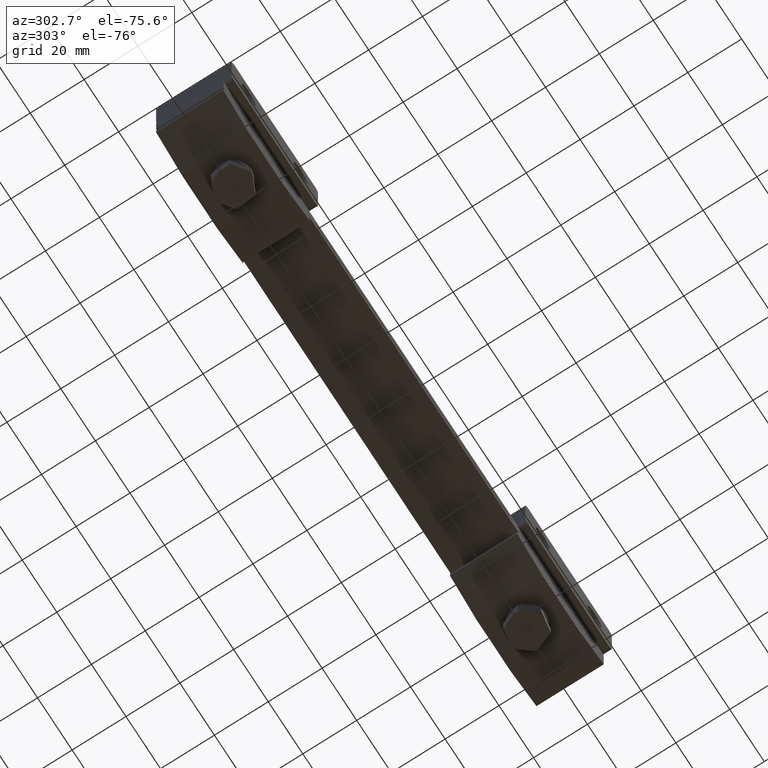
[diagram: clean part render]
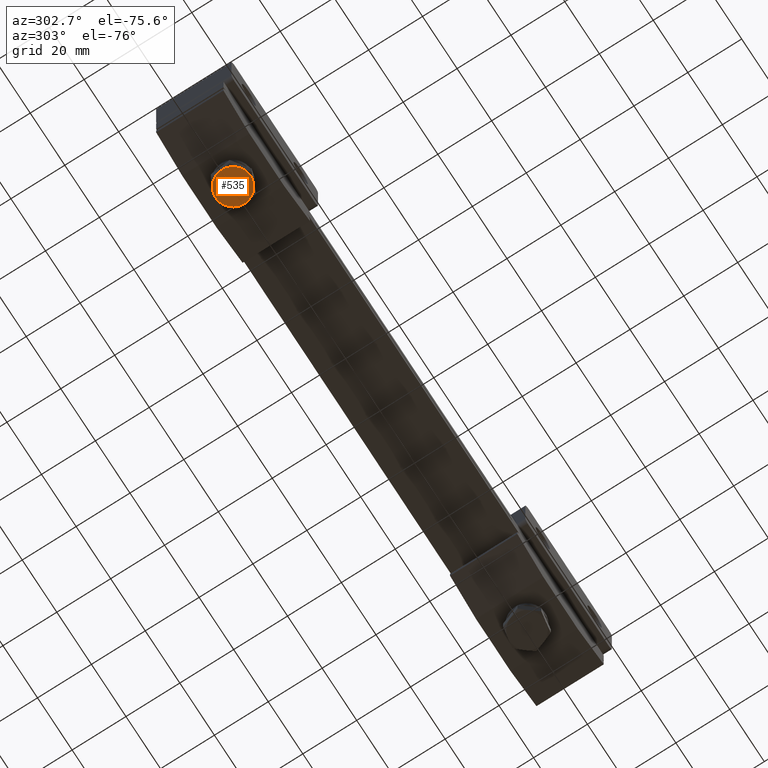
[diagram: same view with one face highlighted and labeled with its STEP entity id]
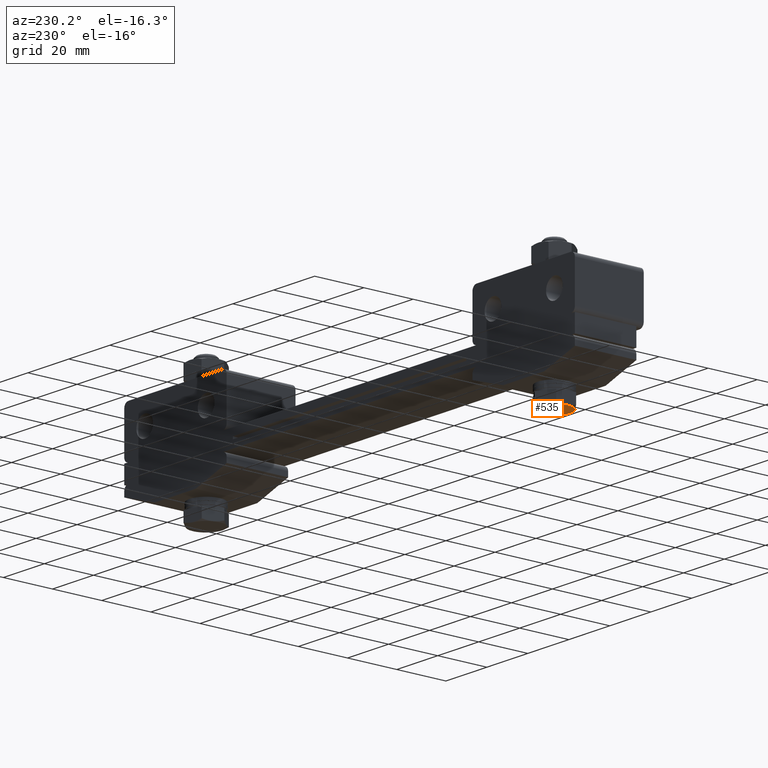
[diagram: same view with one face highlighted and labeled with its STEP entity id]
A machine part, auxiliary view. The second image highlights one B-rep face of the part: STEP entity #535.
A second angle (auxiliary view) of the same face is appended — the face is thin or edge-on in the first view.
In plain terms, the highlighted planar face has unit normal (0, 0, 1).
Its self-contained STEP definition (entity closure, byte-faithful):
#345 = ORIENTED_EDGE ( 'NONE', *, *, #20619, .T. ) ;
#535 = ADVANCED_FACE ( 'NONE', ( #1881 ), #11138, .F. ) ;
#618 = VERTEX_POINT ( 'NONE', #3264 ) ;
#1112 = ORIENTED_EDGE ( 'NONE', *, *, #14296, .F. ) ;
#1627 = AXIS2_PLACEMENT_3D ( 'NONE', #20636, #10912, #14000 ) ;
#1653 = AXIS2_PLACEMENT_3D ( 'NONE', #17424, #3203, #3130 ) ;
#1881 = FACE_OUTER_BOUND ( 'NONE', #10390, .T. ) ;
#2217 = DIRECTION ( 'NONE',  ( 0.9954598516578334600, -0.09518237093792253400, 0.0000000000000000000 ) ) ;
#2915 = ORIENTED_EDGE ( 'NONE', *, *, #8573, .F. ) ;
#3130 = DIRECTION ( 'NONE',  ( -0.9954598516578334600, 0.09518237093792253400, 0.0000000000000000000 ) ) ;
#3195 = CARTESIAN_POINT ( 'NONE',  ( -81.22895819915150600, 5.294265174342439400, -16.80000000000000100 ) ) ;
#3203 = DIRECTION ( 'NONE',  ( 0.0000000000000000000, 0.0000000000000000000, 1.000000000000000000 ) ) ;
#3264 = CARTESIAN_POINT ( 'NONE',  ( -78.52951096422390300, -0.6186854110964900000, -16.80000000000000100 ) ) ;
#3804 = AXIS2_PLACEMENT_3D ( 'NONE', #6081, #15960, #12850 ) ;
#5613 = VERTEX_POINT ( 'NONE', #19517 ) ;
#5658 = AXIS2_PLACEMENT_3D ( 'NONE', #14063, #19135, #6016 ) ;
#6016 = DIRECTION ( 'NONE',  ( -0.9954598516578334600, 0.09518237093792253400, 0.0000000000000000000 ) ) ;
#6081 = CARTESIAN_POINT ( 'NONE',  ( -85.00000000000000000, 0.0000000000000000000, -16.80000000000000100 ) ) ;
#6228 = ORIENTED_EDGE ( 'NONE', *, *, #17524, .F. ) ;
#6973 = VERTEX_POINT ( 'NONE', #11267 ) ;
#7033 = CARTESIAN_POINT ( 'NONE',  ( -85.00000000000000000, 0.0000000000000000000, -16.80000000000000100 ) ) ;
#7224 = CIRCLE ( 'NONE', #1653, 6.500000000000071900 ) ;
#7459 = VERTEX_POINT ( 'NONE', #19620 ) ;
#7852 = CIRCLE ( 'NONE', #5658, 6.500000000000071900 ) ;
#8573 = EDGE_CURVE ( 'NONE', #618, #18643, #7224, .T. ) ;
#10390 = EDGE_LOOP ( 'NONE', ( #12521, #17684, #1112, #2915, #345, #6228 ) ) ;
#10448 = DIRECTION ( 'NONE',  ( 0.0000000000000000000, 0.0000000000000000000, -1.000000000000000000 ) ) ;
#10757 = AXIS2_PLACEMENT_3D ( 'NONE', #19649, #11548, #12877 ) ;
#10912 = DIRECTION ( 'NONE',  ( 0.0000000000000000000, 0.0000000000000000000, 1.000000000000000000 ) ) ;
#11138 = PLANE ( 'NONE',  #14905 ) ;
#11267 = CARTESIAN_POINT ( 'NONE',  ( -88.77104180084850800, -5.294265174342399400, -16.80000000000000100 ) ) ;
#11548 = DIRECTION ( 'NONE',  ( 0.0000000000000000000, 0.0000000000000000000, 1.000000000000000000 ) ) ;
#11969 = CIRCLE ( 'NONE', #10757, 6.500000000000071900 ) ;
#12521 = ORIENTED_EDGE ( 'NONE', *, *, #18709, .F. ) ;
#12580 = CIRCLE ( 'NONE', #3804, 6.500000000000071900 ) ;
#12735 = DIRECTION ( 'NONE',  ( 0.0000000000000000000, 0.0000000000000000000, 1.000000000000000000 ) ) ;
#12813 = CARTESIAN_POINT ( 'NONE',  ( -85.71439637728059300, -7.471477173187549800, -16.80000000000000100 ) ) ;
#12850 = DIRECTION ( 'NONE',  ( -0.9954598516578334600, 0.09518237093792253400, 0.0000000000000000000 ) ) ;
#12877 = DIRECTION ( 'NONE',  ( -0.9954598516578334600, 0.09518237093792253400, 0.0000000000000000000 ) ) ;
#13417 = EDGE_CURVE ( 'NONE', #18734, #5613, #12580, .T. ) ;
#14000 = DIRECTION ( 'NONE',  ( -0.9954598516578334600, 0.09518237093792253400, 0.0000000000000000000 ) ) ;
#14063 = CARTESIAN_POINT ( 'NONE',  ( -85.00000000000000000, 0.0000000000000000000, -16.80000000000000100 ) ) ;
#14296 = EDGE_CURVE ( 'NONE', #18643, #18734, #7852, .T. ) ;
#14429 = DIRECTION ( 'NONE',  ( -0.9954598516578334600, 0.09518237093792249200, 0.0000000000000000000 ) ) ;
#14905 = AXIS2_PLACEMENT_3D ( 'NONE', #12813, #12735, #14429 ) ;
#15546 = CIRCLE ( 'NONE', #1627, 6.500000000000071900 ) ;
#15960 = DIRECTION ( 'NONE',  ( 0.0000000000000000000, 0.0000000000000000000, 1.000000000000000000 ) ) ;
#16488 = CARTESIAN_POINT ( 'NONE',  ( -87.69944723492770300, 5.912950585438959900, -16.80000000000000100 ) ) ;
#17424 = CARTESIAN_POINT ( 'NONE',  ( -85.00000000000000000, 0.0000000000000000000, -16.80000000000000100 ) ) ;
#17524 = EDGE_CURVE ( 'NONE', #6973, #7459, #15546, .T. ) ;
#17684 = ORIENTED_EDGE ( 'NONE', *, *, #13417, .F. ) ;
#17969 = AXIS2_PLACEMENT_3D ( 'NONE', #7033, #10448, #2217 ) ;
#18643 = VERTEX_POINT ( 'NONE', #3195 ) ;
#18709 = EDGE_CURVE ( 'NONE', #5613, #6973, #11969, .T. ) ;
#18734 = VERTEX_POINT ( 'NONE', #16488 ) ;
#19135 = DIRECTION ( 'NONE',  ( 0.0000000000000000000, 0.0000000000000000000, 1.000000000000000000 ) ) ;
#19517 = CARTESIAN_POINT ( 'NONE',  ( -91.47048903577589800, 0.6186854110964960000, -16.80000000000000100 ) ) ;
#19620 = CARTESIAN_POINT ( 'NONE',  ( -82.30055276507251000, -5.912950585438909300, -16.80000000000000100 ) ) ;
#19649 = CARTESIAN_POINT ( 'NONE',  ( -85.00000000000000000, 0.0000000000000000000, -16.80000000000000100 ) ) ;
#20114 = CIRCLE ( 'NONE', #17969, 6.500000000000071900 ) ;
#20619 = EDGE_CURVE ( 'NONE', #618, #7459, #20114, .T. ) ;
#20636 = CARTESIAN_POINT ( 'NONE',  ( -85.00000000000000000, 0.0000000000000000000, -16.80000000000000100 ) ) ;